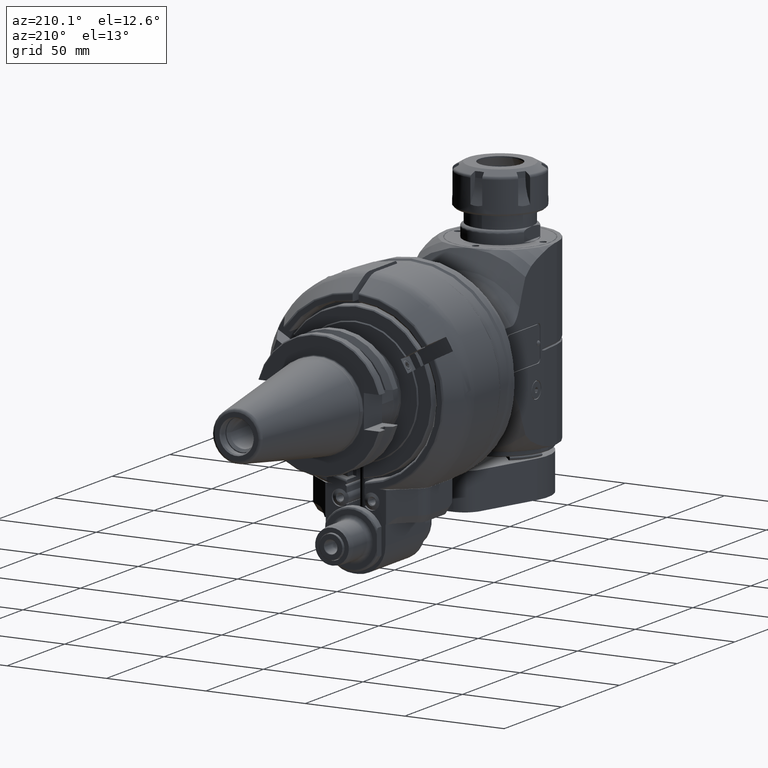
[diagram: clean part render]
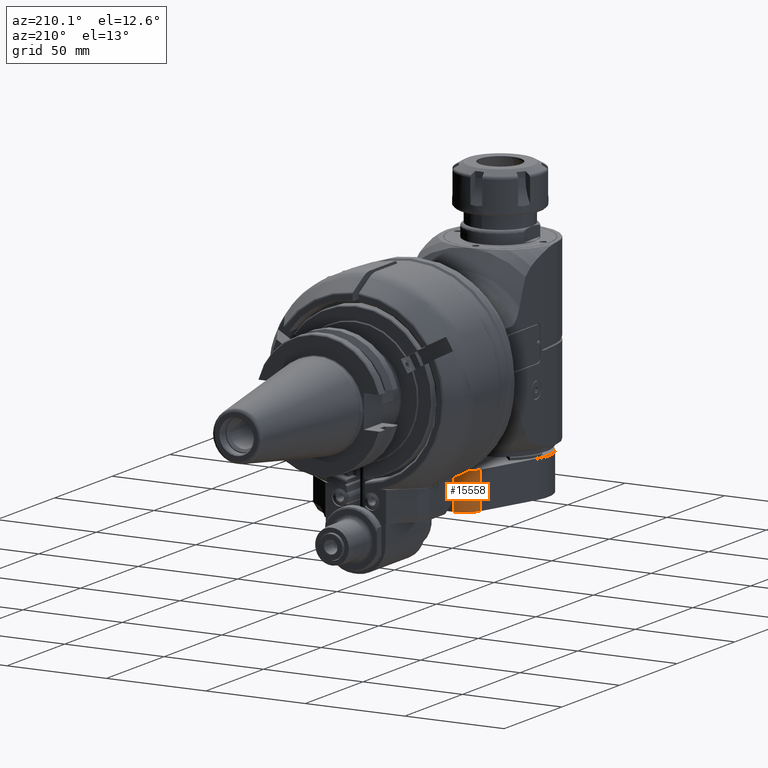
[diagram: same view with one face highlighted and labeled with its STEP entity id]
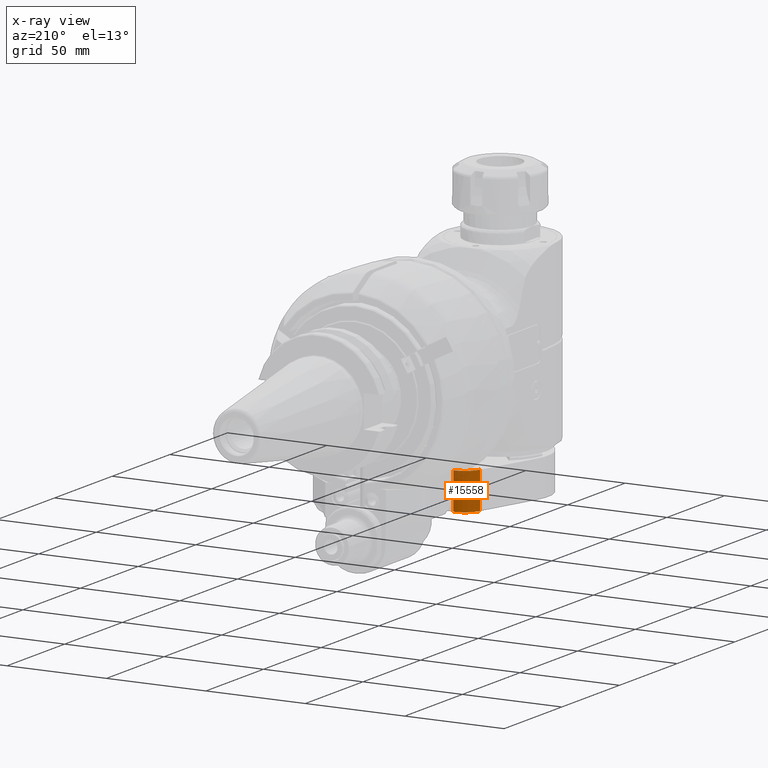
[diagram: x-ray of the same camera — body ghosted, the highlighted face saturated]
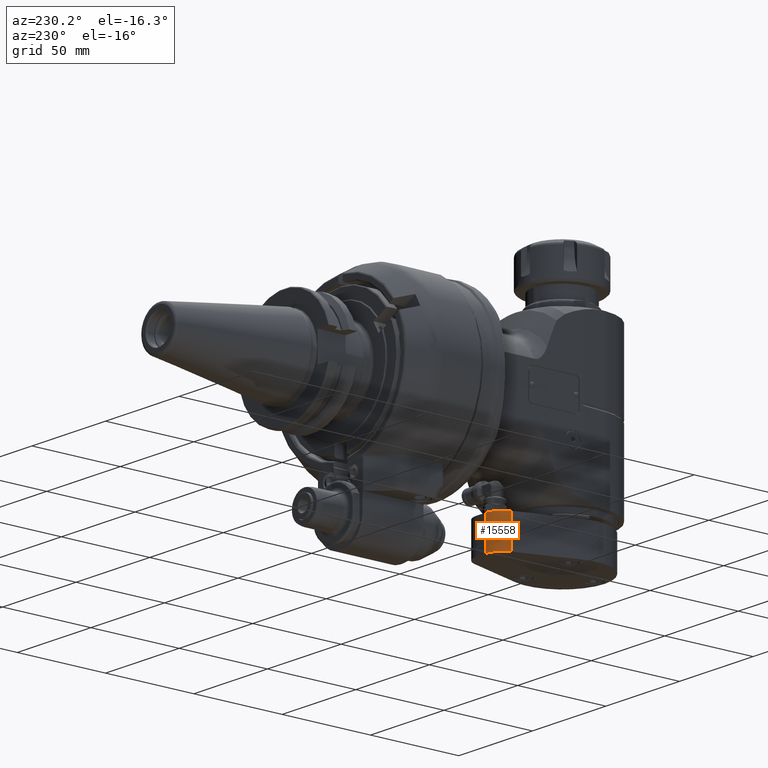
[diagram: same view with one face highlighted and labeled with its STEP entity id]
A machine part, auxiliary view. The second image highlights one B-rep face of the part: STEP entity #15558.
The next image is the same camera in x-ray: the body ghosted, the highlighted face saturated — about 5% of this face is hidden behind the body in this view.
A second angle (auxiliary view) of the same face is appended — the face is thin or edge-on in the first view.
In plain terms, the highlighted cylindrical surface (edge-blend (fillet) strip) has radius 10 mm, axis along (0, -0, 1).
Its self-contained STEP definition (entity closure, byte-faithful):
#784=CYLINDRICAL_SURFACE('',#16762,10.);
#1321=CIRCLE('',#16745,10.);
#1337=CIRCLE('',#16763,10.);
#2160=FACE_OUTER_BOUND('',#3101,.T.);
#3101=EDGE_LOOP('',(#11381,#11382,#11383,#11384));
#4096=LINE('',#24542,#5255);
#4099=LINE('',#24549,#5258);
#5255=VECTOR('',#19249,18.5);
#5258=VECTOR('',#19256,18.5);
#6575=VERTEX_POINT('',#24494);
#6576=VERTEX_POINT('',#24496);
#6597=VERTEX_POINT('',#24541);
#6599=VERTEX_POINT('',#24547);
#8404=EDGE_CURVE('',#6575,#6576,#1321,.T.);
#8427=EDGE_CURVE('',#6575,#6597,#4096,.T.);
#8430=EDGE_CURVE('',#6599,#6597,#1337,.T.);
#8431=EDGE_CURVE('',#6599,#6576,#4099,.T.);
#11381=ORIENTED_EDGE('',*,*,#8427,.T.);
#11382=ORIENTED_EDGE('',*,*,#8430,.F.);
#11383=ORIENTED_EDGE('',*,*,#8431,.T.);
#11384=ORIENTED_EDGE('',*,*,#8404,.F.);
#15558=ADVANCED_FACE('',(#2160),#784,.T.);
#16745=AXIS2_PLACEMENT_3D('',#24497,#19208,#19209);
#16762=AXIS2_PLACEMENT_3D('',#24546,#19252,#19253);
#16763=AXIS2_PLACEMENT_3D('',#24548,#19254,#19255);
#19208=DIRECTION('center_axis',(0.,-1.,0.));
#19209=DIRECTION('ref_axis',(-1.,0.,0.));
#19249=DIRECTION('',(0.,1.,0.));
#19252=DIRECTION('center_axis',(0.,-1.,0.));
#19253=DIRECTION('ref_axis',(-1.,0.,0.));
#19254=DIRECTION('center_axis',(0.,1.,0.));
#19255=DIRECTION('ref_axis',(-0.309016994375011,0.,-0.951056516295133));
#19256=DIRECTION('',(0.,-1.,0.));
#24494=CARTESIAN_POINT('',(44.,50.,-3.023362074951));
#24496=CARTESIAN_POINT('',(50.90983005625,50.,-12.5339272379));
#24497=CARTESIAN_POINT('Origin',(54.,50.,-3.023362074951));
#24541=CARTESIAN_POINT('',(44.,68.5,-3.023362074951));
#24542=CARTESIAN_POINT('',(44.,50.,-3.023362074951));
#24546=CARTESIAN_POINT('Origin',(54.,50.,-3.023362074951));
#24547=CARTESIAN_POINT('',(50.90983005625,68.5,-12.5339272379));
#24548=CARTESIAN_POINT('Origin',(54.,68.5,-3.023362074951));
#24549=CARTESIAN_POINT('',(50.90983005625,68.5,-12.5339272379));